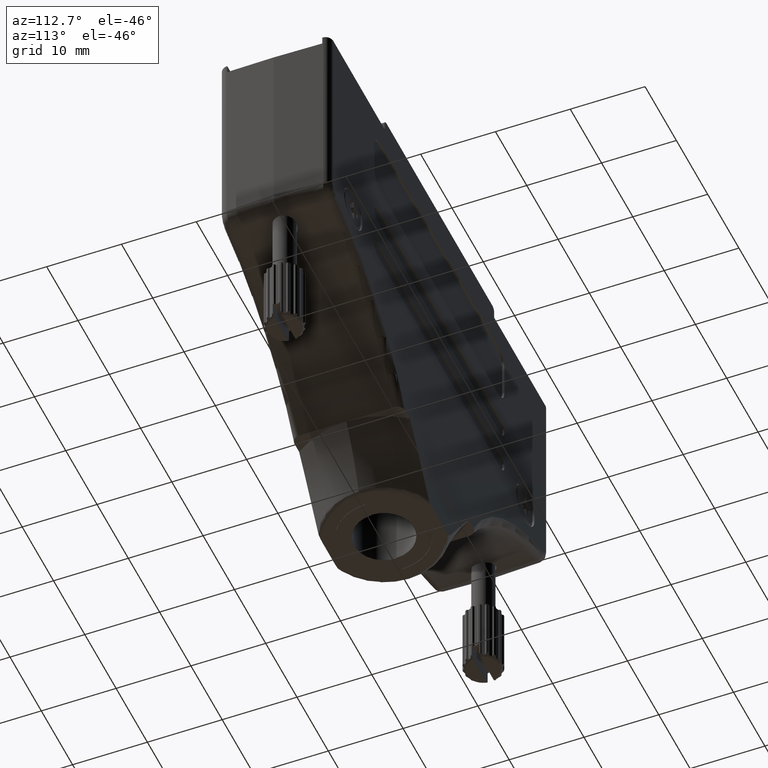
[diagram: clean part render]
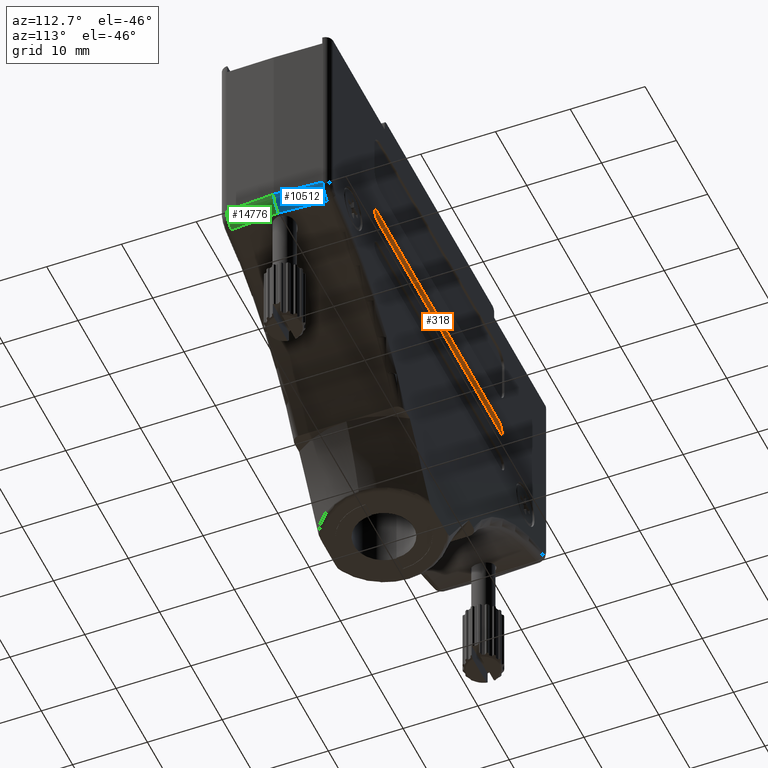
[diagram: same view with three faces highlighted in distinct colors, each labeled with its STEP entity id]
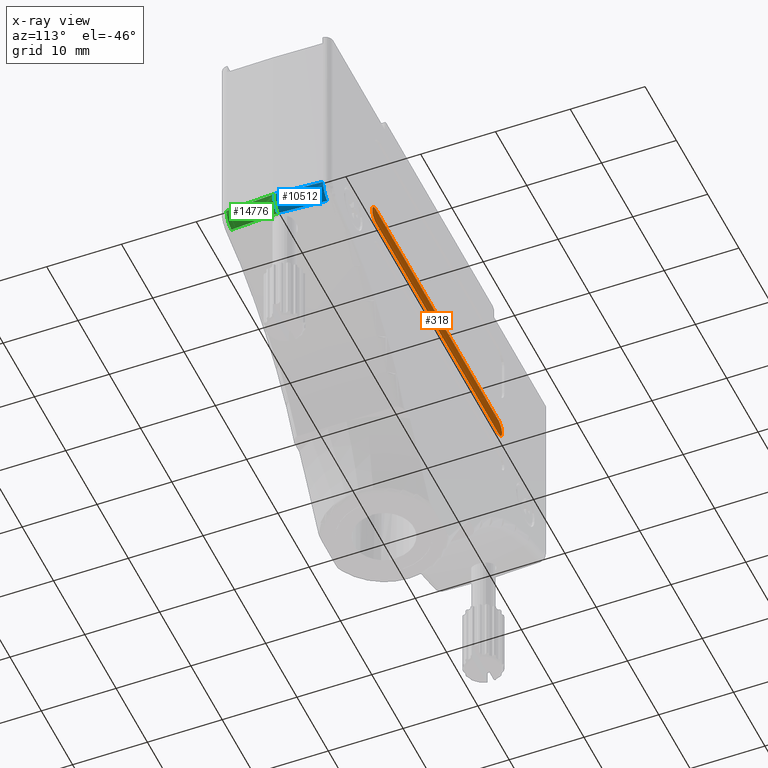
[diagram: x-ray of the same camera — body ghosted, the three highlighted faces saturated]
A machine part, auxiliary view with three faces highlighted in distinct colors.
The next image is the same camera in x-ray (body ghosted, the three faces saturated) — at least one of them is partly hidden behind the body in this view.
Their STEP definitions:

[orange] entity #318 — the highlighted planar face has unit normal (0, 1, 0).
#318 = ADVANCED_FACE ( 'NONE', ( #8758 ), #21919, .T. ) ;
#543 = AXIS2_PLACEMENT_3D ( 'NONE', #929, #9919, #2516 ) ;
#557 = ORIENTED_EDGE ( 'NONE', *, *, #14330, .T. ) ;
#566 = AXIS2_PLACEMENT_3D ( 'NONE', #7277, #18458, #1615 ) ;
#929 = CARTESIAN_POINT ( 'NONE',  ( 19.55000000000000071, -7.100000000000000533, -17.69999999999999574 ) ) ;
#1224 = EDGE_CURVE ( 'NONE', #8402, #14893, #16246, .T. ) ;
#1615 = DIRECTION ( 'NONE',  ( 0.000000000000000000, 0.000000000000000000, -1.000000000000000000 ) ) ;
#2516 = DIRECTION ( 'NONE',  ( 0.000000000000000000, 0.000000000000000000, -1.000000000000000000 ) ) ;
#2693 = VERTEX_POINT ( 'NONE', #7302 ) ;
#3529 = ORIENTED_EDGE ( 'NONE', *, *, #18069, .T. ) ;
#4072 = CIRCLE ( 'NONE', #566, 1.199999999999999734 ) ;
#4382 = EDGE_CURVE ( 'NONE', #2693, #8402, #4072, .T. ) ;
#4775 = ORIENTED_EDGE ( 'NONE', *, *, #4382, .T. ) ;
#6081 = AXIS2_PLACEMENT_3D ( 'NONE', #21557, #10489, #19691 ) ;
#7180 = VERTEX_POINT ( 'NONE', #19746 ) ;
#7277 = CARTESIAN_POINT ( 'NONE',  ( -19.55000000000000071, -7.100000000000000533, -17.69999999999999574 ) ) ;
#7302 = CARTESIAN_POINT ( 'NONE',  ( -19.55000000000000071, -7.100000000000000533, -16.49999999999999645 ) ) ;
#8402 = VERTEX_POINT ( 'NONE', #10598 ) ;
#8554 = EDGE_LOOP ( 'NONE', ( #557, #3529, #4775, #15501 ) ) ;
#8758 = FACE_OUTER_BOUND ( 'NONE', #8554, .T. ) ;
#9919 = DIRECTION ( 'NONE',  ( 0.000000000000000000, -1.000000000000000000, 0.000000000000000000 ) ) ;
#10489 = DIRECTION ( 'NONE',  ( 0.000000000000000000, -1.000000000000000000, 0.000000000000000000 ) ) ;
#10506 = CARTESIAN_POINT ( 'NONE',  ( 19.55000000000000071, -7.100000000000000533, -18.89999999999999503 ) ) ;
#10598 = CARTESIAN_POINT ( 'NONE',  ( -19.55000000000000071, -7.100000000000000533, -18.89999999999999503 ) ) ;
#12575 = CARTESIAN_POINT ( 'NONE',  ( 19.55000000000000071, -7.100000000000000533, -18.89999999999999503 ) ) ;
#13922 = CIRCLE ( 'NONE', #543, 1.199999999999999734 ) ;
#13976 = VECTOR ( 'NONE', #16361, 1000.000000000000000 ) ;
#14330 = EDGE_CURVE ( 'NONE', #14893, #7180, #13922, .T. ) ;
#14893 = VERTEX_POINT ( 'NONE', #10506 ) ;
#15501 = ORIENTED_EDGE ( 'NONE', *, *, #1224, .T. ) ;
#16246 = LINE ( 'NONE', #12575, #13976 ) ;
#16361 = DIRECTION ( 'NONE',  ( 1.000000000000000000, -0.000000000000000000, -0.000000000000000000 ) ) ;
#17825 = LINE ( 'NONE', #19554, #18676 ) ;
#18069 = EDGE_CURVE ( 'NONE', #7180, #2693, #17825, .T. ) ;
#18458 = DIRECTION ( 'NONE',  ( 0.000000000000000000, -1.000000000000000000, 0.000000000000000000 ) ) ;
#18676 = VECTOR ( 'NONE', #21034, 1000.000000000000000 ) ;
#19554 = CARTESIAN_POINT ( 'NONE',  ( 19.55000000000000071, -7.100000000000000533, -16.49999999999999645 ) ) ;
#19691 = DIRECTION ( 'NONE',  ( 0.000000000000000000, -0.000000000000000000, -1.000000000000000000 ) ) ;
#19746 = CARTESIAN_POINT ( 'NONE',  ( 19.55000000000000071, -7.100000000000000533, -16.49999999999999645 ) ) ;
#21034 = DIRECTION ( 'NONE',  ( -1.000000000000000000, 0.000000000000000000, 0.000000000000000000 ) ) ;
#21557 = CARTESIAN_POINT ( 'NONE',  ( 19.55000000000000071, -7.100000000000000533, -17.69999999999999574 ) ) ;
#21919 = PLANE ( 'NONE',  #6081 ) ;

[blue] entity #10512 — the highlighted face is a freeform B-spline surface patch.
#42 = CARTESIAN_POINT ( 'NONE',  ( -33.55254636141101798, -4.247508165646011413, -27.92113709776331376 ) ) ;
#125 = EDGE_CURVE ( 'NONE', #16544, #5388, #12701, .T. ) ;
#1528 = EDGE_CURVE ( 'NONE', #12499, #3512, #16397, .T. ) ;
#1765 = CARTESIAN_POINT ( 'NONE',  ( -33.77079249502396863, 0.1437483975614828324, -27.86231587993271575 ) ) ;
#1784 = CARTESIAN_POINT ( 'NONE',  ( -34.70053809495801289, 0.000000000000000000, -27.32465511815074066 ) ) ;
#2000 = CARTESIAN_POINT ( 'NONE',  ( -33.66160210371148054, -2.053234497612687282, -27.89147437791279316 ) ) ;
#2048 = CARTESIAN_POINT ( 'NONE',  ( -33.65749201946204039, -2.135932111310845816, -27.89259562632341272 ) ) ;
#2715 = EDGE_CURVE ( 'NONE', #3512, #16544, #23702, .T. ) ;
#2742 = ORIENTED_EDGE ( 'NONE', *, *, #12025, .F. ) ;
#3251 = FACE_OUTER_BOUND ( 'NONE', #18930, .T. ) ;
#3264 = CARTESIAN_POINT ( 'NONE',  ( -34.87566634582956482, -6.448226561321721562, -26.45917942640802423 ) ) ;
#3512 = VERTEX_POINT ( 'NONE', #16661 ) ;
#3516 = CARTESIAN_POINT ( 'NONE',  ( -33.65621000208560076, -6.405934560345426299, -27.89243872137373614 ) ) ;
#3523 = CARTESIAN_POINT ( 'NONE',  ( -34.17475719424015068, -0.000000000000000000, -27.71771132740801136 ) ) ;
#3656 =( BOUNDED_CURVE ( )  B_SPLINE_CURVE ( 3, ( #13135, #9571, #2048, #9702 ),
 .UNSPECIFIED., .F., .F. ) 
 B_SPLINE_CURVE_WITH_KNOTS ( ( 4, 4 ),
 ( 4.442254719440811073, 4.451234110736428384 ),
 .UNSPECIFIED. ) 
 CURVE ( )  GEOMETRIC_REPRESENTATION_ITEM ( )  RATIONAL_B_SPLINE_CURVE ( ( 1.000000000000000000, 0.9999932808889498981, 0.9999932808889498981, 1.000000000000000000 ) ) 
 REPRESENTATION_ITEM ( '' )  );
#4096 = CARTESIAN_POINT ( 'NONE',  ( -35.25204791180499342, 0.03907648507559494111, -25.93002702203096987 ) ) ;
#4885 = CARTESIAN_POINT ( 'NONE',  ( -34.62779829712438584, -6.437414890053842598, -27.05637796391251371 ) ) ;
#5011 = CARTESIAN_POINT ( 'NONE',  ( -33.85433266045255607, -6.411785027009733184, -27.80049606189265177 ) ) ;
#5020 = CARTESIAN_POINT ( 'NONE',  ( -35.25000000000000000, 0.000000000000000000, -25.93057396201571763 ) ) ;
#5388 = VERTEX_POINT ( 'NONE', #15111 ) ;
#5493 = CARTESIAN_POINT ( 'NONE',  ( -33.97668369720110348, 0.000000000000000000, -27.80728893120863532 ) ) ;
#5817 = CARTESIAN_POINT ( 'NONE',  ( -35.13690891714615105, -2.157906410097413907, -25.96077405118542458 ) ) ;
#7073 = CARTESIAN_POINT ( 'NONE',  ( -33.44362991907512139, -6.438979026344354928, -27.95130277443773537 ) ) ;
#7204 = CARTESIAN_POINT ( 'NONE',  ( -34.36572466484758337, -6.428061126298385553, -27.40095765740323586 ) ) ;
#9173 = CARTESIAN_POINT ( 'NONE',  ( -34.91193028507553464, -6.450754440455139793, -26.24118274411980067 ) ) ;
#9301 = CARTESIAN_POINT ( 'NONE',  ( -35.07211879516959385, 0.000000000000000000, -26.78349144728827014 ) ) ;
#9571 = CARTESIAN_POINT ( 'NONE',  ( -33.55146430885534414, -4.269279778844141227, -27.92144308516741091 ) ) ;
#9702 = CARTESIAN_POINT ( 'NONE',  ( -33.76364817732611812, 0.000000000000000000, -27.86422448877492286 ) ) ;
#10193 = ORIENTED_EDGE ( 'NONE', *, *, #1528, .F. ) ;
#10512 = ADVANCED_FACE ( 'NONE', ( #3251 ), #17946, .T. ) ;
#11152 = CARTESIAN_POINT ( 'NONE',  ( -34.54112366642083742, -0.000000000000000000, -27.47358514741090119 ) ) ;
#11248 = CARTESIAN_POINT ( 'NONE',  ( -35.02319071390689942, -4.327778989440712820, -27.51868533427718333 ) ) ;
#11411 = ORIENTED_EDGE ( 'NONE', *, *, #2715, .F. ) ;
#12025 = EDGE_CURVE ( 'NONE', #5388, #12499, #3656, .T. ) ;
#12393 = CARTESIAN_POINT ( 'NONE',  ( -34.12279203280057516, -6.420126947777005100, -27.61869263210494907 ) ) ;
#12499 = VERTEX_POINT ( 'NONE', #20607 ) ;
#12522 = CARTESIAN_POINT ( 'NONE',  ( -35.21380576914667415, -0.000000000000000000, -26.36811498785566599 ) ) ;
#12701 = B_SPLINE_CURVE_WITH_KNOTS ( 'NONE', 3,
 ( #12867, #9173, #3264, #23575, #24047, #4885, #16537, #23811, #7204, #20367, #12393, #5011, #3516, #19881 ),
 .UNSPECIFIED., .F., .F.,
 ( 4, 2, 2, 2, 2, 2, 4 ),
 ( 1.040834085586084257E-17, 0.0006523111821293869125, 0.0009784667731940800434, 0.001304622364258773174, 0.001630777955323466305, 0.001956933546388159653, 0.002609244728517546349 ),
 .UNSPECIFIED. ) ;
#12867 = CARTESIAN_POINT ( 'NONE',  ( -34.91184740134518449, -6.452335956242944093, -26.02253674844185838 ) ) ;
#13079 = CARTESIAN_POINT ( 'NONE',  ( -35.25317172445048186, 0.06052010777569270111, -27.46645731355718567 ) ) ;
#13135 = CARTESIAN_POINT ( 'NONE',  ( -33.44556718274192519, -6.399999999999995914, -27.95076628381908534 ) ) ;
#14572 = CARTESIAN_POINT ( 'NONE',  ( -35.02191190706526669, -4.352180078130783336, -25.99205277176513817 ) ) ;
#15111 = CARTESIAN_POINT ( 'NONE',  ( -33.44556718274192519, -6.399999999999995914, -27.95076628381908534 ) ) ;
#16396 = CARTESIAN_POINT ( 'NONE',  ( -35.13714410190623738, -2.153418817543411468, -25.96071792721718907 ) ) ;
#16397 = B_SPLINE_CURVE_WITH_KNOTS ( 'NONE', 3,
 ( #22225, #5493, #3523, #11152, #1784, #18629, #9301, #12522, #21865, #5020 ),
 .UNSPECIFIED., .F., .F.,
 ( 4, 2, 2, 2, 4 ),
 ( 0.000000000000000000, 0.0006521536466577155904, 0.001304307293315431181, 0.001956460939973146771, 0.002608614586630862361 ),
 .UNSPECIFIED. ) ;
#16409 = CARTESIAN_POINT ( 'NONE',  ( -34.90706178589251607, -6.543650938830242403, -26.02386184987836515 ) ) ;
#16537 = CARTESIAN_POINT ( 'NONE',  ( -34.56852471157640139, -6.435193379719481577, -27.14894157094347449 ) ) ;
#16544 = VERTEX_POINT ( 'NONE', #21293 ) ;
#16661 = CARTESIAN_POINT ( 'NONE',  ( -35.25000000000000000, 0.000000000000000000, -25.93057396201571763 ) ) ;
#17946 =( BOUNDED_SURFACE ( )  B_SPLINE_SURFACE ( 3, 2, ( 
 ( #16409, #23920, #7073 ),
 ( #14572, #11248, #42 ),
 ( #5817, #20940, #2000 ),
 ( #4096, #13079, #1765 ) ),
 .UNSPECIFIED., .F., .F., .F. ) 
 B_SPLINE_SURFACE_WITH_KNOTS ( ( 4, 4 ),
 ( 3, 3 ),
 ( 4.442199963032482657, 4.451435543903826897 ),
 ( 0.000000000000000000, 1.000000000000000000 ),
 .UNSPECIFIED. ) 
 GEOMETRIC_REPRESENTATION_ITEM ( )  RATIONAL_B_SPLINE_SURFACE ( (
 ( 1.000000000000000000, 0.7957850857900344854, 1.000000000000000000),
 ( 1.000000000000000000, 0.7948543151833207254, 1.000000000000000000),
 ( 1.000000000000000000, 0.7939207211808907427, 1.000000000000000000),
 ( 1.000000000000000000, 0.7929843137880385751, 1.000000000000000000) ) ) 
 REPRESENTATION_ITEM ( '' )  SURFACE ( )  );
#18629 = CARTESIAN_POINT ( 'NONE',  ( -34.96866682143613048, -0.000000000000000000, -26.97638026960090230 ) ) ;
#18837 = CARTESIAN_POINT ( 'NONE',  ( -35.02442579926317734, -4.304212157484304413, -25.99137239869993365 ) ) ;
#18930 = EDGE_LOOP ( 'NONE', ( #10193, #2742, #22368, #11411 ) ) ;
#19881 = CARTESIAN_POINT ( 'NONE',  ( -33.44556718274192519, -6.399999999999995914, -27.95076628381908534 ) ) ;
#20367 = CARTESIAN_POINT ( 'NONE',  ( -34.20856610053793645, -6.422870457673089284, -27.54980549101016152 ) ) ;
#20607 = CARTESIAN_POINT ( 'NONE',  ( -33.76364817732611812, 0.000000000000000000, -27.86422448877492286 ) ) ;
#20940 = CARTESIAN_POINT ( 'NONE',  ( -35.13817882231448664, -2.133675176338560853, -27.49228211715990966 ) ) ;
#21293 = CARTESIAN_POINT ( 'NONE',  ( -34.91184740134518449, -6.452335956242944093, -26.02253674844185838 ) ) ;
#21865 = CARTESIAN_POINT ( 'NONE',  ( -35.24999999999999289, 0.000000000000000000, -26.15109485076587248 ) ) ;
#22225 = CARTESIAN_POINT ( 'NONE',  ( -33.76364817732611812, 0.000000000000000000, -27.86422448877492286 ) ) ;
#22368 = ORIENTED_EDGE ( 'NONE', *, *, #125, .F. ) ;
#23575 = CARTESIAN_POINT ( 'NONE',  ( -34.77201497466640490, -6.443292863624257016, -26.76587269676599590 ) ) ;
#23702 =( BOUNDED_CURVE ( )  B_SPLINE_CURVE ( 3, ( #24024, #16396, #18837, #24139 ),
 .UNSPECIFIED., .F., .F. ) 
 B_SPLINE_CURVE_WITH_KNOTS ( ( 4, 4 ),
 ( 1.831804519684087973, 1.840857069276003566 ),
 .UNSPECIFIED. ) 
 CURVE ( )  GEOMETRIC_REPRESENTATION_ITEM ( )  RATIONAL_B_SPLINE_CURVE ( ( 1.000000000000000000, 0.9999931709571493466, 0.9999931709571493466, 1.000000000000000000 ) ) 
 REPRESENTATION_ITEM ( '' )  );
#23811 = CARTESIAN_POINT ( 'NONE',  ( -34.43769828583885584, -6.430525352025073360, -27.32076907674085575 ) ) ;
#23920 = CARTESIAN_POINT ( 'NONE',  ( -34.90821624735809792, -6.521622501804757555, -27.54566854058611369 ) ) ;
#24024 = CARTESIAN_POINT ( 'NONE',  ( -35.25000000000000000, 0.000000000000000000, -25.93057396201571763 ) ) ;
#24047 = CARTESIAN_POINT ( 'NONE',  ( -34.72939440384737964, -6.441460443985611128, -26.86488332491973452 ) ) ;
#24139 = CARTESIAN_POINT ( 'NONE',  ( -34.91184740134518449, -6.452335956242944093, -26.02253674844185838 ) ) ;

[green] entity #14776 — the highlighted face is a freeform B-spline surface patch.
#52 = CARTESIAN_POINT ( 'NONE',  ( 34.77273126388614344, -6.443324437448210595, -26.76410131174471019 ) ) ;
#164 = CARTESIAN_POINT ( 'NONE',  ( 34.91193028071072746, -6.450754523740256374, -26.24117122986539741 ) ) ;
#1181 = CARTESIAN_POINT ( 'NONE',  ( 34.70182689683354482, -0.000000000000000000, -27.32332277309100022 ) ) ;
#1298 = CARTESIAN_POINT ( 'NONE',  ( 34.54204017844377006, 0.000000000000000000, -27.47272988278718131 ) ) ;
#2126 = CARTESIAN_POINT ( 'NONE',  ( 34.62776907062335141, -6.437413875484994996, -27.05641244770426113 ) ) ;
#2573 =( BOUNDED_CURVE ( )  B_SPLINE_CURVE ( 3, ( #23684, #13730, #12385, #6601 ),
 .UNSPECIFIED., .F., .F. ) 
 B_SPLINE_CURVE_WITH_KNOTS ( ( 4, 4 ),
 ( 4.442328237903581112, 4.451380787495495817 ),
 .UNSPECIFIED. ) 
 CURVE ( )  GEOMETRIC_REPRESENTATION_ITEM ( )  RATIONAL_B_SPLINE_CURVE ( ( 1.000000000000000000, 0.9999931709571493466, 0.9999931709571493466, 1.000000000000000000 ) ) 
 REPRESENTATION_ITEM ( '' )  );
#2904 = CARTESIAN_POINT ( 'NONE',  ( 35.07269831269896088, -0.000000000000000000, -26.78243999286712196 ) ) ;
#3628 = CARTESIAN_POINT ( 'NONE',  ( 33.44556718274193230, -6.400000000000010125, -27.95076628381909956 ) ) ;
#3862 = CARTESIAN_POINT ( 'NONE',  ( 34.20832355353859100, -6.422862543221343756, -27.55002189565676218 ) ) ;
#4222 = CARTESIAN_POINT ( 'NONE',  ( 35.25317172445034686, 0.06052010777294499627, -27.46645731355722830 ) ) ;
#4310 = CARTESIAN_POINT ( 'NONE',  ( 33.76364817732611812, 0.000000000000000000, -27.86422448877493707 ) ) ;
#4540 = VERTEX_POINT ( 'NONE', #4310 ) ;
#4761 = CARTESIAN_POINT ( 'NONE',  ( 35.25000000000000000, 0.000000000000000000, -26.15109335892494258 ) ) ;
#4880 = CARTESIAN_POINT ( 'NONE',  ( 34.96970341257538450, 0.000000000000000000, -26.97468916321802013 ) ) ;
#5222 = VERTEX_POINT ( 'NONE', #17954 ) ;
#6059 = CARTESIAN_POINT ( 'NONE',  ( 33.66160210373857353, -2.053234497615620935, -27.89147437790556694 ) ) ;
#6562 = CARTESIAN_POINT ( 'NONE',  ( 35.02319071392001604, -4.327778989441424251, -27.51868533429519204 ) ) ;
#6601 = CARTESIAN_POINT ( 'NONE',  ( 35.25000000000000000, 0.000000000000000000, -25.93057396201572828 ) ) ;
#7393 = EDGE_CURVE ( 'NONE', #4540, #5222, #20602, .T. ) ;
#8184 = CARTESIAN_POINT ( 'NONE',  ( 34.91184740134518449, -6.452335956242944093, -26.02253674844187259 ) ) ;
#8226 = EDGE_LOOP ( 'NONE', ( #21161, #21329, #17897, #18839 ) ) ;
#8394 = CARTESIAN_POINT ( 'NONE',  ( 33.77079249502382652, 0.1437483975587350304, -27.86231587993276193 ) ) ;
#8814 = CARTESIAN_POINT ( 'NONE',  ( 33.76364817732611812, 0.000000000000000000, -27.86422448877493707 ) ) ;
#9170 = CARTESIAN_POINT ( 'NONE',  ( 34.36570833522876711, -6.428060490672993232, -27.40098641778688560 ) ) ;
#9292 = CARTESIAN_POINT ( 'NONE',  ( 33.65749201946205460, -2.135932111310601567, -27.89259562632341982 ) ) ;
#9416 = CARTESIAN_POINT ( 'NONE',  ( 33.44556718274193230, -6.400000000000010125, -27.95076628381909956 ) ) ;
#9652 = CARTESIAN_POINT ( 'NONE',  ( 34.91184740134518449, -6.452335956242944093, -26.02253674844187259 ) ) ;
#10011 = FACE_OUTER_BOUND ( 'NONE', #8226, .T. ) ;
#11493 = CARTESIAN_POINT ( 'NONE',  ( 33.85650850324756789, -6.411850667799917858, -27.79929451980112276 ) ) ;
#11725 = CARTESIAN_POINT ( 'NONE',  ( 35.25204791180485131, 0.03907648507284713912, -25.93002702203101606 ) ) ;
#11971 = CARTESIAN_POINT ( 'NONE',  ( 33.55254636141772551, -4.247508165646608269, -27.92113709776146280 ) ) ;
#12385 = CARTESIAN_POINT ( 'NONE',  ( 35.13714410190622317, -2.153418817543621522, -25.96071792721720328 ) ) ;
#12506 = CARTESIAN_POINT ( 'NONE',  ( 35.25000000000000000, 0.000000000000000000, -25.93057396201572828 ) ) ;
#12987 = CARTESIAN_POINT ( 'NONE',  ( 33.55146430885536546, -4.269279778843913853, -27.92144308516741802 ) ) ;
#13077 = B_SPLINE_CURVE_WITH_KNOTS ( 'NONE', 3,
 ( #9416, #16886, #11493, #15176, #3862, #9170, #20590, #18978, #2126, #20480, #52, #22556, #164, #9652 ),
 .UNSPECIFIED., .F., .F.,
 ( 4, 2, 2, 2, 2, 2, 4 ),
 ( 0.000000000000000000, 0.0006522767593817620354, 0.0009784151390726516725, 0.001304553518763541635, 0.001630691898454431380, 0.001956830278145320692, 0.002609107037527090642 ),
 .UNSPECIFIED. ) ;
#13730 = CARTESIAN_POINT ( 'NONE',  ( 35.02442579926317734, -4.304212157484342605, -25.99137239869995142 ) ) ;
#13938 = CARTESIAN_POINT ( 'NONE',  ( 35.02191190706527379, -4.352180078130771790, -25.99205277178225160 ) ) ;
#14434 = VERTEX_POINT ( 'NONE', #8184 ) ;
#14776 = ADVANCED_FACE ( 'NONE', ( #10011 ), #19369, .T. ) ;
#15176 = CARTESIAN_POINT ( 'NONE',  ( 34.12430817845166331, -6.420175058790483114, -27.61752790996368745 ) ) ;
#15624 = EDGE_CURVE ( 'NONE', #14434, #20848, #2573, .T. ) ;
#16176 = CARTESIAN_POINT ( 'NONE',  ( 34.17692045641187093, -0.000000000000000000, -27.71651234881161585 ) ) ;
#16533 = CARTESIAN_POINT ( 'NONE',  ( 33.76364817732611812, 0.000000000000000000, -27.86422448877493707 ) ) ;
#16886 = CARTESIAN_POINT ( 'NONE',  ( 33.65619886696731555, -6.405934246629404250, -27.89244180471790813 ) ) ;
#17238 = B_SPLINE_CURVE_WITH_KNOTS ( 'NONE', 3,
 ( #12506, #4761, #20233, #2904, #4880, #1181, #1298, #16176, #20001, #8814 ),
 .UNSPECIFIED., .F., .F.,
 ( 4, 2, 2, 2, 4 ),
 ( 0.000000000000000000, 0.0006521582561963675190, 0.001304316512392735038, 0.001956474768589102665, 0.002608633024785470076 ),
 .UNSPECIFIED. ) ;
#17473 = CARTESIAN_POINT ( 'NONE',  ( 33.44362991907517824, -6.438979026343327305, -27.95130277443772826 ) ) ;
#17897 = ORIENTED_EDGE ( 'NONE', *, *, #21640, .F. ) ;
#17929 = CARTESIAN_POINT ( 'NONE',  ( 35.25000000000000000, 0.000000000000000000, -25.93057396201572828 ) ) ;
#17954 = CARTESIAN_POINT ( 'NONE',  ( 33.44556718274193230, -6.400000000000010125, -27.95076628381909956 ) ) ;
#18839 = ORIENTED_EDGE ( 'NONE', *, *, #7393, .F. ) ;
#18978 = CARTESIAN_POINT ( 'NONE',  ( 34.56970891743463170, -6.435237007827378619, -27.14719647291324378 ) ) ;
#19369 =( BOUNDED_SURFACE ( )  B_SPLINE_SURFACE ( 3, 2, ( 
 ( #11725, #4222, #8394 ),
 ( #23025, #23403, #6059 ),
 ( #13938, #6562, #11971 ),
 ( #21190, #21444, #17473 ) ),
 .UNSPECIFIED., .F., .F., .F. ) 
 B_SPLINE_SURFACE_WITH_KNOTS ( ( 4, 4 ),
 ( 3, 3 ),
 ( 1.831749763275762000, 1.840985344147104907 ),
 ( 0.000000000000000000, 1.000000000000000000 ),
 .UNSPECIFIED. ) 
 GEOMETRIC_REPRESENTATION_ITEM ( )  RATIONAL_B_SPLINE_SURFACE ( (
 ( 1.000000000000000000, 0.7929843137880393522, 1.000000000000000000),
 ( 1.000000000000000000, 0.7939207211808922970, 1.000000000000000000),
 ( 1.000000000000000000, 0.7948543151833228348, 1.000000000000000000),
 ( 1.000000000000000000, 0.7957850857900341524, 1.000000000000000000) ) ) 
 REPRESENTATION_ITEM ( '' )  SURFACE ( )  );
#19695 = EDGE_CURVE ( 'NONE', #20848, #4540, #17238, .T. ) ;
#20001 = CARTESIAN_POINT ( 'NONE',  ( 33.97668201023109447, 0.000000000000000000, -27.80728938206575762 ) ) ;
#20233 = CARTESIAN_POINT ( 'NONE',  ( 35.21445581639875400, -0.000000000000000000, -26.36555615740237002 ) ) ;
#20480 = CARTESIAN_POINT ( 'NONE',  ( 34.72925652902036120, -6.441454804830114789, -26.86516377016825174 ) ) ;
#20590 = CARTESIAN_POINT ( 'NONE',  ( 34.43906700574027724, -6.430572841635221693, -27.31915749075137256 ) ) ;
#20602 =( BOUNDED_CURVE ( )  B_SPLINE_CURVE ( 3, ( #16533, #9292, #12987, #3628 ),
 .UNSPECIFIED., .F., .F. ) 
 B_SPLINE_CURVE_WITH_KNOTS ( ( 4, 4 ),
 ( 1.831951196443159846, 1.840930587738777158 ),
 .UNSPECIFIED. ) 
 CURVE ( )  GEOMETRIC_REPRESENTATION_ITEM ( )  RATIONAL_B_SPLINE_CURVE ( ( 1.000000000000000000, 0.9999932808889498981, 0.9999932808889498981, 1.000000000000000000 ) ) 
 REPRESENTATION_ITEM ( '' )  );
#20848 = VERTEX_POINT ( 'NONE', #17929 ) ;
#21161 = ORIENTED_EDGE ( 'NONE', *, *, #19695, .F. ) ;
#21190 = CARTESIAN_POINT ( 'NONE',  ( 34.90706178589257291, -6.543650938829215669, -26.02386184987835804 ) ) ;
#21329 = ORIENTED_EDGE ( 'NONE', *, *, #15624, .F. ) ;
#21444 = CARTESIAN_POINT ( 'NONE',  ( 34.90821624735814765, -6.521622501803731708, -27.54566854058611014 ) ) ;
#21640 = EDGE_CURVE ( 'NONE', #5222, #14434, #13077, .T. ) ;
#22556 = CARTESIAN_POINT ( 'NONE',  ( 34.87623046216451428, -6.448258527815131202, -26.45680403743760323 ) ) ;
#23025 = CARTESIAN_POINT ( 'NONE',  ( 35.13690891714605868, -2.157906410099086791, -25.96077405117269876 ) ) ;
#23403 = CARTESIAN_POINT ( 'NONE',  ( 35.13817882232588374, -2.133675176340980251, -27.49228211713277048 ) ) ;
#23684 = CARTESIAN_POINT ( 'NONE',  ( 34.91184740134518449, -6.452335956242944093, -26.02253674844187259 ) ) ;